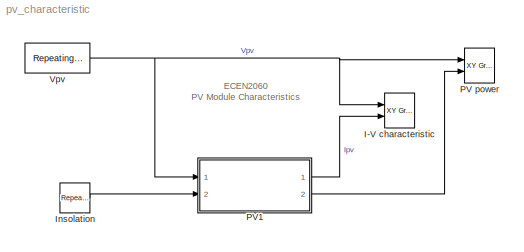
MODEL pv_characteristic
KIND model
BLOCK [Reference] I-V characteristic  REF=simulink/Sinks/XY Graph
  FunctionWithSeparateData = off
  Ports = [2]
  RTWMemSecDataConstants = Inherit from model
  RTWMemSecDataInternal = Inherit from model
  RTWMemSecDataParameters = Inherit from model
  RTWMemSecFuncExecute = Inherit from model
  RTWMemSecFuncInitTerm = Inherit from model
  ShowPortLabels = on
  SourceBlock = simulink/Sinks/XY Graph
  SourceType = XY scope.
  SystemSampleTime = -1
  st = -1
  xmax = 25
  xmin = 0
  ymax = 6
  ymin = 0
BLOCK [Reference] Insolation  REF=simulink/Sources/Repeating\nSequence\nStair
  ConRadixGroup = Best Precision: Vector-wise
  FunctionWithSeparateData = off
  LockScale = off
  OutDataType = float('double')
  OutScaling = 2^-12
  OutValues = [200 400 600 800 1000].'
  OutputDataTypeScalingMode = Specify via dialog
  Ports = [0, 1]
  RTWMemSecDataConstants = Inherit from model
  RTWMemSecDataInternal = Inherit from model
  RTWMemSecDataParameters = Inherit from model
  RTWMemSecFuncExecute = Inherit from model
  RTWMemSecFuncInitTerm = Inherit from model
  ShowPortLabels = on
  SourceBlock = simulink/Sources/Repeating\nSequence\nStair
  SourceType = Repeating Sequence Stair
  SystemSampleTime = -1
  tsamp = 1
BLOCK [Reference] PV power  REF=simulink/Sinks/XY Graph
  FunctionWithSeparateData = off
  Ports = [2]
  RTWMemSecDataConstants = Inherit from model
  RTWMemSecDataInternal = Inherit from model
  RTWMemSecDataParameters = Inherit from model
  RTWMemSecFuncExecute = Inherit from model
  RTWMemSecFuncInitTerm = Inherit from model
  ShowPortLabels = on
  SourceBlock = simulink/Sinks/XY Graph
  SourceType = XY scope.
  SystemSampleTime = -1
  st = -1
  xmax = 25
  xmin = 0
  ymax = 100
  ymin = 0
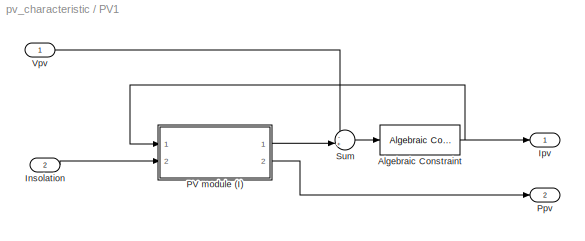
BLOCK [SubSystem] PV1
  FunctionWithSeparateData = off
  MaskCallbackString = ||||
  MaskDescription = PV module model based on module data-sheet parameters. This model has Vpv input, which is suitable for parallel connections of modules. Limitations: no temperature dependance, static model
  MaskDisplay = plot([0.3 0.4],[0.4 0.8]);\nplot([0.4 0.5],[0.4 0.8]);\nplot([0.5 0.6],[0.4 0.8]);\nplot([0.6 0.7],[0.4 0.8]);\nplot([0.3 0.6],[0.4 0.4]);\nplot([0.325 0.625],[0.5 0.5]);\nplot([0.35 0.65],[0.6 0.6]);\nplot([0.375 0.675],[0.7 0.7]);\nplot([0.4 0.7],[0.8 0.8]);\ntext(0.5,0.9,'PV module (V)','horizontalAlignment', 'center');\n
  MaskEnableString = on,on,on,on,on
  MaskHideContents = off
  MaskIconFrame = on
  MaskIconOpaque = off
  MaskIconRotate = none
  MaskIconUnits = normalized
  MaskInitialization = % calculation of PV module parameters\n% limitation: constant temperature\nNs = round(Voc/0.61); % default number of cells in series\nVt = 26e-3; % thermal voltage\nG = Isc/1000; % irradiation to short-circuit current gain\nVmpc = Vr/Ns; % cell voltage at rated Pmax\nVocc = Voc/Ns; % cell open-circuit voltage\nRmpp = Vmpc/Ir; % cell load resistance at Pmax\n%\nRp = 100*Vocc/Isc; % initial value fo...<+575ch>
  MaskPromptString = Short-circuit current|Open-circuit voltage|Current at Pmax|Voltage at Pmax|By-pass diode?
  MaskStyleString = edit,edit,edit,edit,checkbox
  MaskTabNameString = ,,,,
  MaskToolTipString = on,on,on,on,on
  MaskTunableValueString = on,on,on,on,on
  MaskValueString = 5.45|22.2|4.95|17.2|on
  MaskVarAliasString = ,,,,
  MaskVariables = Isc=@1;Voc=@2;Ir=@3;Vr=@4;Diode=@5;
  MaskVisibilityString = on,on,on,on,on
  MinAlgLoopOccurrences = off
  Ports = [2, 2]
  RTWSystemCode = Auto
BLOCK [Reference] PV1/Algebraic Constraint  REF=simulink/Math\nOperations/Algebraic Constraint
  FunctionWithSeparateData = off
  Ports = [1, 1]
  RTWMemSecDataConstants = Inherit from model
  RTWMemSecDataInternal = Inherit from model
  RTWMemSecDataParameters = Inherit from model
  RTWMemSecFuncExecute = Inherit from model
  RTWMemSecFuncInitTerm = Inherit from model
  ShowPortLabels = on
  SourceBlock = simulink/Math\nOperations/Algebraic Constraint
  SourceType = Algebraic Constraint
  SystemSampleTime = -1
  z0 = 0
BLOCK [Inport] PV1/Insolation
  IconDisplay = Port number
  Port = 2
BLOCK [Outport] PV1/Ipv
  BusOutputAsStruct = off
  IconDisplay = Port number
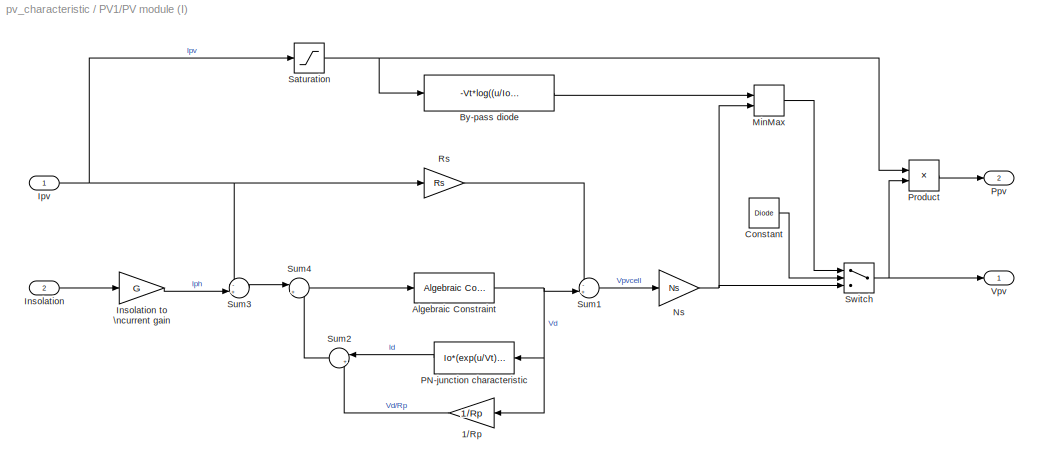
BLOCK [SubSystem] PV1/PV module (I)
  FunctionWithSeparateData = off
  MaskHideContents = off
  MinAlgLoopOccurrences = off
  Ports = [2, 2]
  RTWSystemCode = Auto
BLOCK [Gain] PV1/PV module (I)/1//Rp
  Gain = 1/Rp
  OutDataTypeMode = Inherit via internal rule
  ParameterDataTypeMode = Inherit via internal rule
  SaturateOnIntegerOverflow = off
BLOCK [Reference] PV1/PV module (I)/Algebraic Constraint  REF=simulink/Math\nOperations/Algebraic Constraint
  FunctionWithSeparateData = off
  Ports = [1, 1]
  RTWMemSecDataConstants = Inherit from model
  RTWMemSecDataInternal = Inherit from model
  RTWMemSecDataParameters = Inherit from model
  RTWMemSecFuncExecute = Inherit from model
  RTWMemSecFuncInitTerm = Inherit from model
  ShowPortLabels = on
  SourceBlock = simulink/Math\nOperations/Algebraic Constraint
  SourceType = Algebraic Constraint
  SystemSampleTime = -1
  z0 = 0
BLOCK [Fcn] PV1/PV module (I)/By-pass diode
  Expr = -Vt*log((u/Io)+1)
BLOCK [Constant] PV1/PV module (I)/Constant
  ConRadixGroup = Use specified scaling
  FramePeriod = inf
  OutDataType = sfix(16)
  OutDataTypeMode = Inherit from 'Constant value'
  OutScaling = 2^0
  SampleTime = inf
  SamplingMode = Sample based
  Value = Diode
  VectorParams1D = on
BLOCK [Inport] PV1/PV module (I)/Insolation
  IconDisplay = Port number
  Port = 2
BLOCK [Gain] PV1/PV module (I)/Insolation to \ncurrent gain
  Gain = G
  OutDataTypeMode = Inherit via internal rule
  ParameterDataTypeMode = Inherit via internal rule
  SaturateOnIntegerOverflow = off
BLOCK [Inport] PV1/PV module (I)/Ipv
  IconDisplay = Port number
BLOCK [MinMax] PV1/PV module (I)/MinMax
  Function = max
  InputSameDT = off
  Inputs = 2
  Ports = [2, 1]
  SaturateOnIntegerOverflow = off
BLOCK [Gain] PV1/PV module (I)/Ns
  Gain = Ns
  OutDataTypeMode = Inherit via internal rule
  ParameterDataTypeMode = Inherit via internal rule
  SaturateOnIntegerOverflow = off
BLOCK [Fcn] PV1/PV module (I)/PN-junction characteristic
  Expr = Io*(exp(u/Vt)-1)
BLOCK [Outport] PV1/PV module (I)/Ppv
  BusOutputAsStruct = off
  IconDisplay = Port number
  Port = 2
BLOCK [Product] PV1/PV module (I)/Product
  InputSameDT = off
  OutDataTypeMode = Inherit via internal rule
  Ports = [2, 1]
  SaturateOnIntegerOverflow = off
BLOCK [Gain] PV1/PV module (I)/Rs
  Gain = Rs
  OutDataTypeMode = Inherit via internal rule
  ParameterDataTypeMode = Inherit via internal rule
  SaturateOnIntegerOverflow = off
BLOCK [Saturate] PV1/PV module (I)/Saturation
  LowerLimit = 0
  UpperLimit = inf
BLOCK [Sum] PV1/PV module (I)/Sum1
  IconShape = round
  InputSameDT = off
  Inputs = -+|
  OutDataTypeMode = Inherit via internal rule
  Ports = [2, 1]
  SaturateOnIntegerOverflow = off
BLOCK [Sum] PV1/PV module (I)/Sum2
  IconShape = round
  InputSameDT = off
  Inputs = |++
  OutDataTypeMode = Inherit via internal rule
  Ports = [2, 1]
  SaturateOnIntegerOverflow = off
BLOCK [Sum] PV1/PV module (I)/Sum3
  IconShape = round
  InputSameDT = off
  Inputs = -+|
  OutDataTypeMode = Inherit via internal rule
  Ports = [2, 1]
  SaturateOnIntegerOverflow = off
BLOCK [Sum] PV1/PV module (I)/Sum4
  IconShape = round
  InputSameDT = off
  Inputs = |+-
  OutDataTypeMode = Inherit via internal rule
  Ports = [2, 1]
  SaturateOnIntegerOverflow = off
BLOCK [Switch] PV1/PV module (I)/Switch
  Criteria = u2 > Threshold
  InputSameDT = off
  SaturateOnIntegerOverflow = off
BLOCK [Outport] PV1/PV module (I)/Vpv
  BusOutputAsStruct = off
  IconDisplay = Port number
BLOCK [Outport] PV1/Ppv
  BusOutputAsStruct = off
  IconDisplay = Port number
  Port = 2
BLOCK [Sum] PV1/Sum
  IconShape = round
  InputSameDT = off
  Inputs = -+|
  OutDataTypeMode = Inherit via internal rule
  Ports = [2, 1]
  SaturateOnIntegerOverflow = off
BLOCK [Inport] PV1/Vpv
  IconDisplay = Port number
BLOCK [Reference] Vpv  REF=simulink/Sources/Repeating\nSequence
  FunctionWithSeparateData = off
  Ports = [0, 1]
  RTWMemSecDataConstants = Inherit from model
  RTWMemSecDataInternal = Inherit from model
  RTWMemSecDataParameters = Inherit from model
  RTWMemSecFuncExecute = Inherit from model
  RTWMemSecFuncInitTerm = Inherit from model
  ShowPortLabels = on
  SourceBlock = simulink/Sources/Repeating\nSequence
  SourceType = Repeating table
  SystemSampleTime = -1
  rep_seq_t = [0 1 2]
  rep_seq_y = [-0.5 25 -0.5]
ANNOTATION (root): ECEN2060\nPV Module Characteristics
LINE Insolation:1 -> PV1:2
NET PV1/Algebraic Constraint:1 -> PV1/Ipv:1, PV1/PV module (I):1
LINE PV1/Insolation:1 -> PV1/PV module (I):2
LINE PV1/PV module (I)/1//Rp:1 -> PV1/PV module (I)/Sum2:2
NET PV1/PV module (I)/Algebraic Constraint:1 -> PV1/PV module (I)/1//Rp:1, PV1/PV module (I)/PN-junction characteristic:1, PV1/PV module (I)/Sum1:2
LINE PV1/PV module (I)/By-pass diode:1 -> PV1/PV module (I)/MinMax:1
LINE PV1/PV module (I)/Constant:1 -> PV1/PV module (I)/Switch:2
LINE PV1/PV module (I)/Insolation to \ncurrent gain:1 -> PV1/PV module (I)/Sum3:2
LINE PV1/PV module (I)/Insolation:1 -> PV1/PV module (I)/Insolation to \ncurrent gain:1
NET PV1/PV module (I)/Ipv:1 -> PV1/PV module (I)/Rs:1, PV1/PV module (I)/Saturation:1, PV1/PV module (I)/Sum3:1
LINE PV1/PV module (I)/MinMax:1 -> PV1/PV module (I)/Switch:1
NET PV1/PV module (I)/Ns:1 -> PV1/PV module (I)/MinMax:2, PV1/PV module (I)/Switch:3
LINE PV1/PV module (I)/PN-junction characteristic:1 -> PV1/PV module (I)/Sum2:1
LINE PV1/PV module (I)/Product:1 -> PV1/PV module (I)/Ppv:1
LINE PV1/PV module (I)/Rs:1 -> PV1/PV module (I)/Sum1:1
NET PV1/PV module (I)/Saturation:1 -> PV1/PV module (I)/By-pass diode:1, PV1/PV module (I)/Product:1
LINE PV1/PV module (I)/Sum1:1 -> PV1/PV module (I)/Ns:1
LINE PV1/PV module (I)/Sum2:1 -> PV1/PV module (I)/Sum4:2
LINE PV1/PV module (I)/Sum3:1 -> PV1/PV module (I)/Sum4:1
LINE PV1/PV module (I)/Sum4:1 -> PV1/PV module (I)/Algebraic Constraint:1
NET PV1/PV module (I)/Switch:1 -> PV1/PV module (I)/Product:2, PV1/PV module (I)/Vpv:1
LINE PV1/PV module (I):1 -> PV1/Sum:2
LINE PV1/PV module (I):2 -> PV1/Ppv:1
LINE PV1/Sum:1 -> PV1/Algebraic Constraint:1
LINE PV1/Vpv:1 -> PV1/Sum:1
LINE PV1:1 -> I-V characteristic:2
LINE PV1:2 -> PV power:2
NET Vpv:1 -> I-V characteristic:1, PV power:1, PV1:1
note: NET lines group one-source signal fan-out (src -> all destinations, sorted); 1:1 wires keep LINE
